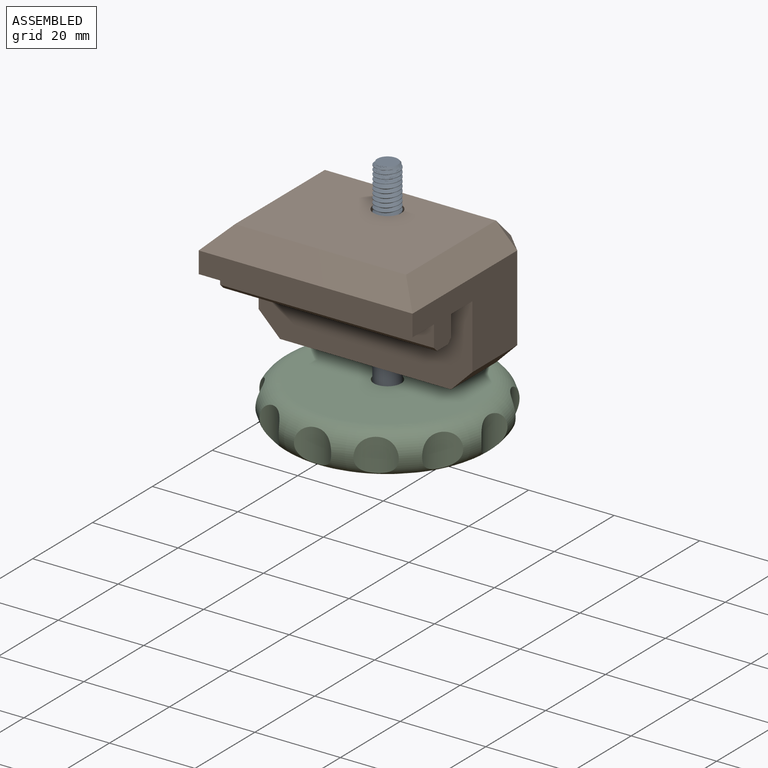
[diagram: assembled view]
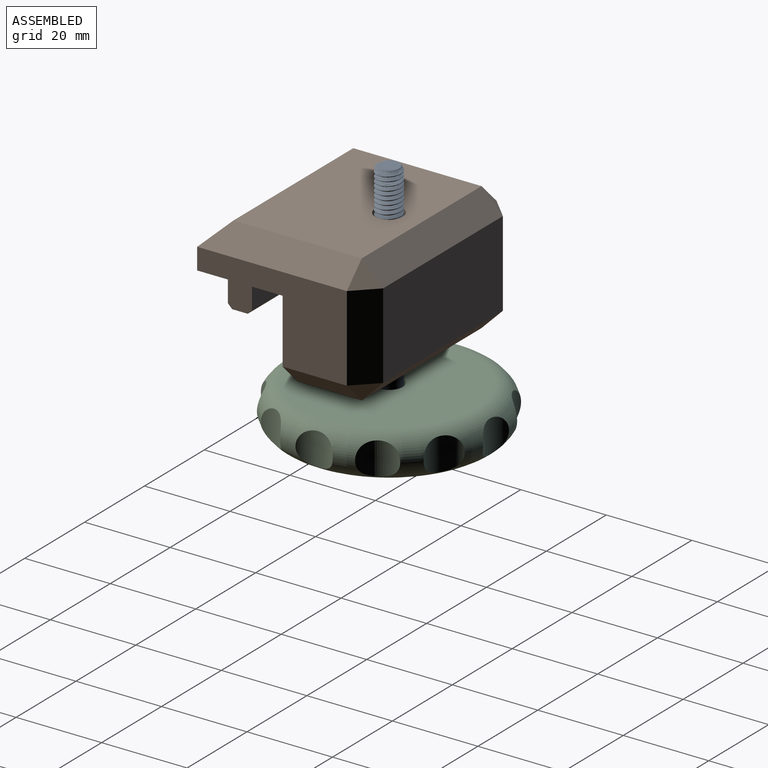
[diagram: assembled view, second angle]
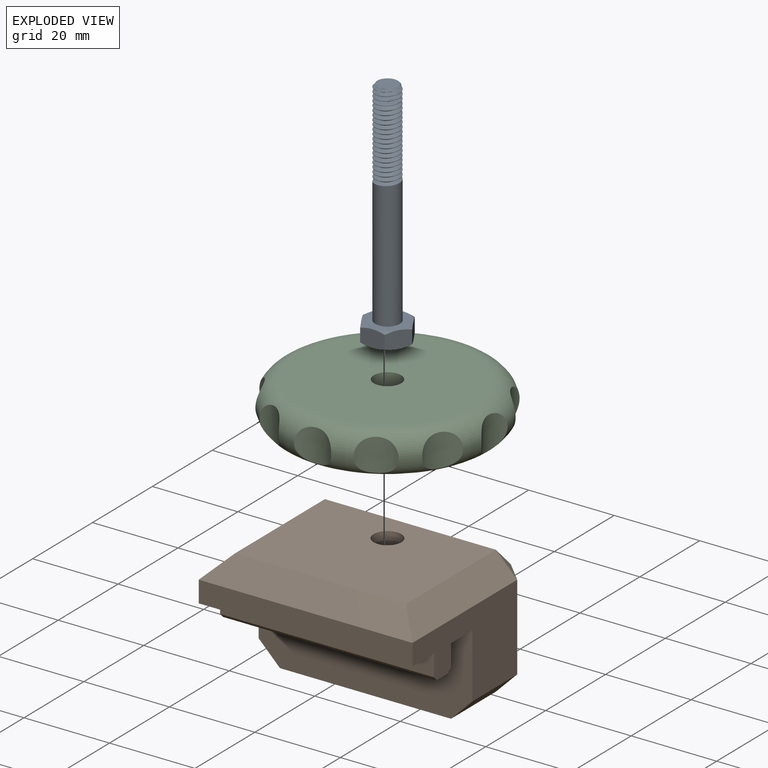
[diagram: exploded view]
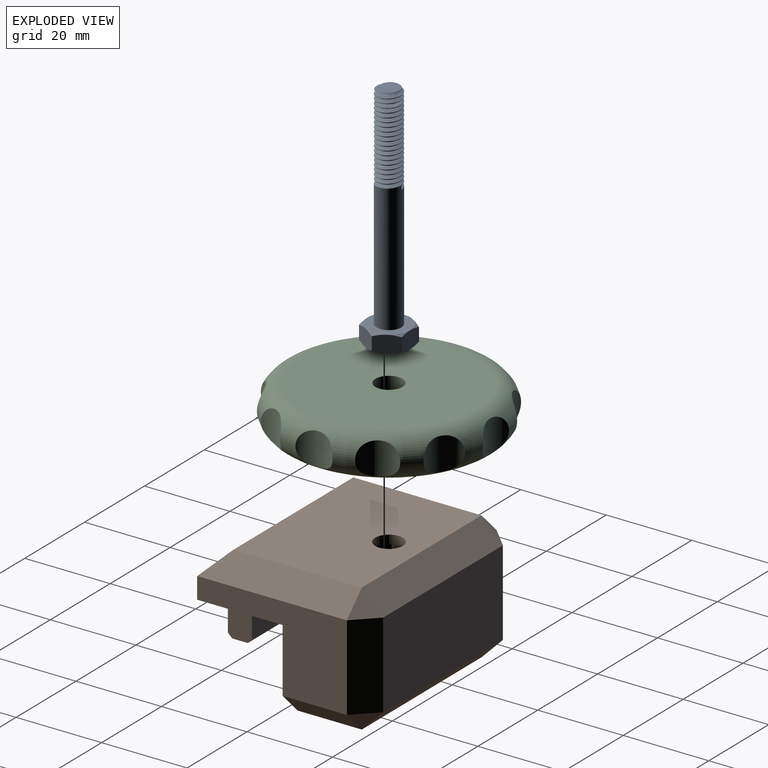
[diagram: exploded view, second angle]
ASSEMBLY  parts=3 mates=2
PART A: 46 faces, bbox 12x12x55 mm
  f0: cylinder r=2.9mm len=5.8mm, axis (0,0,-1), area 1.8mm2, adj f1,f20,f24,f25
  f1: cylinder r=2.9mm len=5.8mm, axis (0,0,-1), area 1.8mm2, adj f0,f2,f24,f25
  f2: cylinder r=2.9mm len=5.8mm, axis (0,0,-1), area 1.8mm2, adj f1,f3,f24,f25
  f3: cylinder r=2.9mm len=5.8mm, axis (0,0,-1), area 1.8mm2, adj f2,f4,f24,f25
  f4: cylinder r=2.9mm len=5.8mm, axis (0,0,-1), area 1.8mm2, adj f3,f5,f24,f25
  f5: cylinder r=2.9mm len=5.8mm, axis (0,0,-1), area 1.8mm2, adj f4,f6,f24,f25
  f6: cylinder r=2.9mm len=5.8mm, axis (0,0,-1), area 1.8mm2, adj f5,f7,f24,f25
  f7: cylinder r=2.9mm len=5.8mm, axis (0,0,-1), area 1.8mm2, adj f6,f8,f24,f25
  f8: cylinder r=2.9mm len=5.8mm, axis (0,0,-1), area 1.8mm2, adj f7,f9,f24,f25
  f9: cylinder r=2.9mm len=5.8mm, axis (0,0,-1), area 1.8mm2, adj f8,f10,f24,f25
  f10: cylinder r=2.9mm len=5.8mm, axis (0,0,-1), area 1.8mm2, adj f9,f11,f24,f25
  f11: cylinder r=2.9mm len=5.8mm, axis (0,0,-1), area 1.8mm2, adj f10,f12,f24,f25
  f12: cylinder r=2.9mm len=5.8mm, axis (0,0,-1), area 1.8mm2, adj f11,f13,f24,f25
  f13: cylinder r=2.9mm len=5.8mm, axis (0,0,-1), area 1.8mm2, adj f12,f14,f24,f25
  f14: cylinder r=2.9mm len=5.8mm, axis (0,0,-1), area 1.8mm2, adj f13,f15,f24,f25
  f15: cylinder r=2.9mm len=5.8mm, axis (0,0,-1), area 1.8mm2, adj f14,f16,f24,f25
  f16: cylinder r=2.9mm len=5.8mm, axis (0,0,-1), area 1.8mm2, adj f15,f17,f24,f25
  f17: cylinder r=2.9mm len=5.8mm, axis (0,0,-1), area 1.8mm2, adj f16,f18,f24,f25
  f18: cylinder r=2.9mm len=5.8mm, axis (0,0,-1), area 1.8mm2, adj f17,f19,f24,f25
  f19: cylinder r=2.9mm len=5.8mm, axis (0,0,-1), area 0.9mm2, adj f18,f22,f24,f25
  f20: cylinder r=2.9mm len=30.08mm, axis (0,0,-1), area 539mm2, adj f0,f23,f25,f45
  f21: plane 4.92x4.71mm, normal (0,0,1), area 17.4mm2, adj f22,f24,f25
  f22: cone r=2.4mm half-angle=45deg, axis (0,0,-1), area 4.5mm2, adj f19,f21,f24,f25
  f23: plane 0.9x0.78mm, normal (0,1,0), area 0.4mm2, adj f20,f24,f25
  f24: bspline ~20.95x6.7mm, area 283.9mm2, adj f0,f1,f2,f3,f4,f5,f6,f7
  f25: bspline ~21.12x6.7mm, area 291.8mm2, adj f0,f1,f2,f3,f4,f5,f6,f7
  f26: plane 6.25x4.48mm, normal (1,0,0), area 21.3mm2, adj f27,f31,f32,f33,f34,f35
  f27: plane 5.47x4.48mm, normal (0.5,-0.87,0), area 21.3mm2, adj f26,f28,f33,f35,f36,f37
  f28: plane 5.47x4.48mm, normal (-0.5,-0.87,0), area 21.3mm2, adj f27,f29,f36,f37,f38,f39
  f29: plane 6.25x4.48mm, normal (-1,0,0), area 21.3mm2, adj f28,f30,f38,f39,f40,f41
  f30: plane 5.47x4.48mm, normal (-0.5,0.87,0), area 21.3mm2, adj f29,f31,f40,f41,f42,f43
  f31: plane 5.47x4.48mm, normal (0.5,0.87,0), area 21.3mm2, adj f26,f30,f32,f34,f42,f43
  f32: cone r=8.46mm half-angle=60deg, axis (0,0,1), area 2.5mm2, adj f26,f31,f44
  f33: cone r=8.46mm half-angle=60deg, axis (0,0,1), area 2.5mm2, adj f26,f27,f44
  f34: cone r=8.46mm half-angle=60deg, axis (0,0,-1), area 2.5mm2, adj f26,f31,f45
  f35: cone r=8.46mm half-angle=60deg, axis (0,0,-1), area 2.5mm2, adj f26,f27,f45
  f36: cone r=8.46mm half-angle=60deg, axis (0,0,1), area 2.5mm2, adj f27,f28,f44
  f37: cone r=8.46mm half-angle=60deg, axis (0,0,-1), area 2.5mm2, adj f27,f28,f45
  f38: cone r=8.46mm half-angle=60deg, axis (0,0,1), area 2.5mm2, adj f28,f29,f44
  f39: cone r=8.46mm half-angle=60deg, axis (0,0,-1), area 2.5mm2, adj f28,f29,f45
  f40: cone r=8.46mm half-angle=60deg, axis (0,0,1), area 2.5mm2, adj f29,f30,f44
  f41: cone r=8.46mm half-angle=60deg, axis (0,0,-1), area 2.5mm2, adj f29,f30,f45
  f42: cone r=8.46mm half-angle=60deg, axis (0,0,1), area 2.5mm2, adj f30,f31,f44
  f43: cone r=8.46mm half-angle=60deg, axis (0,0,-1), area 2.5mm2, adj f30,f31,f45
  f44: plane 10x10mm, normal (0,0,-1), area 78.5mm2, adj f32,f33,f36,f38,f40,f42
  f45: plane 10x10mm, normal (0,0,1), area 52.1mm2, adj f20,f34,f35,f37,f39,f41,f43
PART B: 39 faces, bbox 50x40x30 mm
  f0: cylinder r=3.25mm len=17mm, axis (0,0,1), area 347.1mm2, adj f29,f38
  f1: plane 40x30mm, normal (0,0,1), area 1166.8mm2, adj f13,f16,f19,f22,f23
  f2: plane 50x5mm, normal (0,-1,0), area 250mm2, adj f3,f11,f12,f19
  f3: plane 50x7.18mm, normal (0,0,-1), area 358.7mm2, adj f2,f4,f11,f12
  f4: plane 50x5mm, normal (0,-1,0), area 250mm2, adj f3,f11,f12,f14
  f5: plane 50x3.65mm, normal (0,0,-1), area 182.5mm2, adj f11,f12,f14,f15
  f6: plane 50x5mm, normal (0,1,0), area 250mm2, adj f7,f11,f12,f15
  f7: plane 50x7.18mm, normal (0,0,-1), area 358.7mm2, adj f6,f8,f11,f12
  f8: plane 50x20mm, normal (0,-1,0), area 975mm2, adj f7,f9,f11,f12,f18,f25
  f9: plane 40x15mm, normal (0,0,-1), area 434.9mm2, adj f8,f18,f24,f25,f29
  f10: plane 40x20mm, normal (0,1,0), area 800mm2, adj f17,f23,f24,f28
  f11: plane 35x20mm, normal (1,0,0), area 432.9mm2, adj f2,f3,f4,f5,f6,f7,f8,f14
  f12: plane 35x20mm, normal (-1,0,0), area 432.9mm2, adj f2,f3,f4,f5,f6,f7,f8,f14
  f13: cylinder r=3.25mm len=6.5mm, axis (0,0,1), area 40.8mm2, adj f1,f37
  f14: plane 50x1mm, normal (0,-0.71,-0.71), area 70.7mm2, adj f4,f5,f11,f12
  f15: plane 50x1mm, normal (0,0.71,-0.71), area 70.7mm2, adj f5,f6,f11,f12
  f16: plane 35x5mm, normal (-0.71,0,0.71), area 229.8mm2, adj f1,f12,f19,f20
  f17: plane 20x5mm, normal (-0.71,0.71,0), area 141.4mm2, adj f10,f12,f20,f21
  f18: plane 15x5mm, normal (-0.71,0,-0.71), area 106.1mm2, adj f8,f9,f12,f21
  f19: plane 50x5mm, normal (0,-0.71,0.71), area 318.2mm2, adj f1,f2,f16,f22
  f20: plane 5x5mm, normal (-0.58,0.58,0.58), area 21.7mm2, adj f16,f17,f23
  f21: plane 5x5mm, normal (-0.58,0.58,-0.58), area 21.7mm2, adj f17,f18,f24
  f22: plane 35x5mm, normal (0.71,0,0.71), area 229.8mm2, adj f1,f11,f19,f26
  f23: plane 40x5mm, normal (0,0.71,0.71), area 282.8mm2, adj f1,f10,f20,f26
  f24: plane 40x5mm, normal (0,0.71,-0.71), area 282.8mm2, adj f9,f10,f21,f27
  f25: plane 15x5mm, normal (0.71,0,-0.71), area 106.1mm2, adj f8,f9,f11,f27
  f26: plane 5x5mm, normal (0.58,0.58,0.58), area 21.7mm2, adj f22,f23,f28
  f27: plane 5x5mm, normal (0.58,0.58,-0.58), area 21.7mm2, adj f24,f25,f28
  f28: plane 20x5mm, normal (0.71,0.71,0), area 141.4mm2, adj f10,f11,f26,f27
  f29: cone r=7.25mm half-angle=45deg, axis (0,0,-1), area 186.6mm2, adj f0,f9
  f30: plane 6x5mm, normal (0.5,0.87,0), area 34.6mm2, adj f31,f35,f36,f37
  f31: plane 6x5mm, normal (-0.5,0.87,0), area 34.6mm2, adj f30,f32,f36,f37
  f32: plane 6x5.77mm, normal (-1,0,0), area 34.6mm2, adj f31,f33,f36,f37
  f33: plane 6x5mm, normal (-0.5,-0.87,0), area 34.6mm2, adj f32,f34,f36,f37
  f34: plane 6x5mm, normal (0.5,-0.87,0), area 34.6mm2, adj f33,f35,f36,f37
  f35: plane 6x5.77mm, normal (1,0,0), area 34.6mm2, adj f30,f34,f36,f37
  f36: plane 11.55x10mm, normal (0,0,1), area 29.9mm2, adj f30,f31,f32,f33,f34,f35,f38
  f37: plane 11.55x10mm, normal (0,0,-1), area 53.4mm2, adj f13,f30,f31,f32,f33,f34,f35
  f38: cone r=3.25mm half-angle=45deg, axis (0,0,1), area 33.3mm2, adj f0,f36
PART C: 23 faces, bbox 55x55x10 mm
  f0: torus R=20.4mm, axis (0,0,1), area 1613.4mm2, adj f1,f3,f11,f12,f13,f14,f15,f16
  f1: plane 40.8x40.8mm, normal (0,0,-1), area 1219.1mm2, adj f0,f5,f6,f7,f8,f9,f10
  f2: cylinder r=3.2mm len=6.4mm, axis (0,0,1), area 80.4mm2, adj f3,f4
  f3: plane 40.8x40.8mm, normal (0,0,1), area 1275.2mm2, adj f0,f2
  f4: plane 11.66x10.1mm, normal (0,0,-1), area 56.2mm2, adj f2,f5,f6,f7,f8,f9,f10
  f5: plane 6x5.05mm, normal (-0.5,0.87,0), area 35mm2, adj f1,f4,f6,f10
  f6: plane 6x5.05mm, normal (0.5,0.87,0), area 35mm2, adj f1,f4,f5,f7
  f7: plane 6x5.83mm, normal (1,0,0), area 35mm2, adj f1,f4,f6,f8
  f8: plane 6x5.05mm, normal (0.5,-0.87,0), area 35mm2, adj f1,f4,f7,f9
  f9: plane 6x5.05mm, normal (-0.5,-0.87,0), area 35mm2, adj f1,f4,f8,f10
  f10: plane 6x5.83mm, normal (-1,0,0), area 35mm2, adj f1,f4,f5,f9
  f11: cylinder r=7.5mm len=8.71mm, axis (0,0,-1), area 56.7mm2, adj f0
  f12: cylinder r=7.5mm len=8.71mm, axis (0,0,-1), area 56.7mm2, adj f0
  f13: cylinder r=7.5mm len=7.63mm, axis (0,0,-1), area 56.7mm2, adj f0
  f14: cylinder r=7.5mm len=7.63mm, axis (0,0,-1), area 56.7mm2, adj f0
  f15: cylinder r=7.5mm len=7.63mm, axis (0,0,-1), area 56.7mm2, adj f0
  f16: cylinder r=7.5mm len=7.63mm, axis (0,0,-1), area 56.7mm2, adj f0
  f17: cylinder r=7.5mm len=8.71mm, axis (0,0,-1), area 56.7mm2, adj f0
  f18: cylinder r=7.5mm len=7.63mm, axis (0,0,-1), area 56.7mm2, adj f0
  f19: cylinder r=7.5mm len=7.63mm, axis (0,0,-1), area 56.7mm2, adj f0
  f20: cylinder r=7.5mm len=8.71mm, axis (0,0,-1), area 56.7mm2, adj f0
  f21: cylinder r=7.5mm len=7.63mm, axis (0,0,-1), area 56.7mm2, adj f0
  f22: cylinder r=7.5mm len=7.63mm, axis (0,0,-1), area 56.7mm2, adj f0
PLACE A rot(axis=(0,0,1),90deg) t=(-171.03,60.89,220.95)mm
PLACE B t=(-196.03,51.49,218.21)mm
PLACE C rot(axis=(0,0,1),90deg) t=(-171.03,93.99,218.95)mm
MATE cylindrical A.f0 <-> B.f0  axis (0,0,1) through (-171.03,51.49,274.95)mm
MATE fastened C.f0 <-> A.f0  axis (0,0,1) through (-171.03,51.49,224.95)mm
